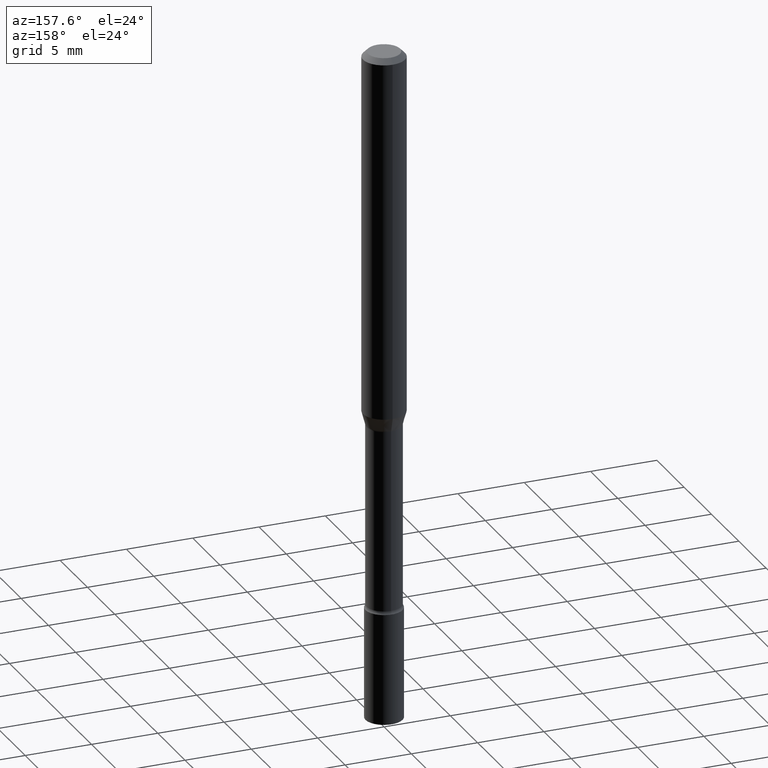
[diagram: clean part render]
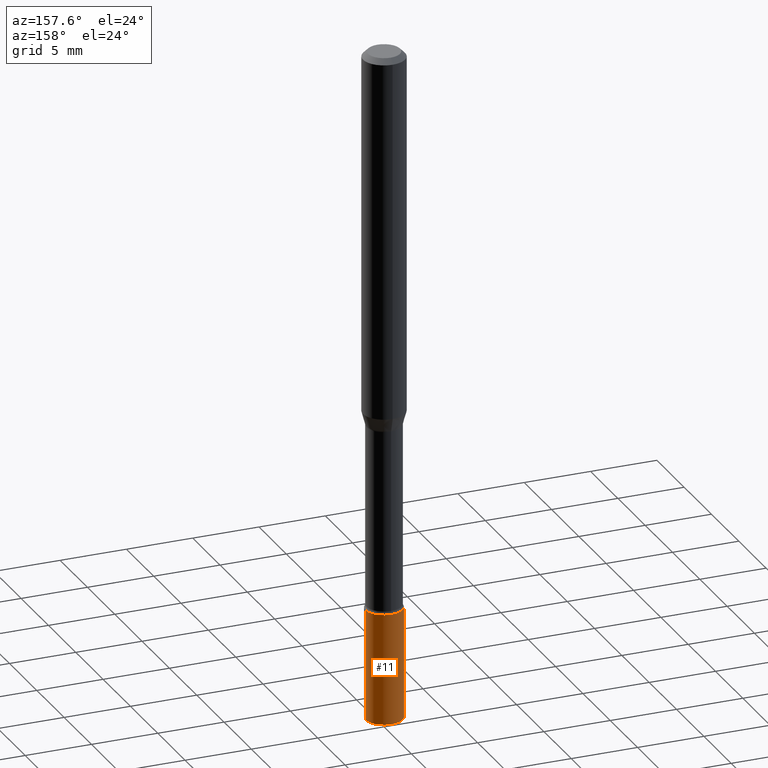
[diagram: same view with one face highlighted and labeled with its STEP entity id]
A machine part, auxiliary view. The second image highlights one B-rep face of the part: STEP entity #11.
In plain terms, the highlighted cylindrical surface (edge-blend (fillet) strip) has radius 1.397 mm, axis along (-0, 0, 1).
Its self-contained STEP definition (entity closure, byte-faithful):
#8 = EDGE_CURVE ( 'NONE', #367, #158, #295, .T. ) ;
#11 = ADVANCED_FACE ( 'NONE', ( #472 ), #403, .T. ) ;
#22 = VECTOR ( 'NONE', #285, 39.37007874015748143 ) ;
#31 = EDGE_CURVE ( 'NONE', #158, #466, #162, .T. ) ;
#33 = CARTESIAN_POINT ( 'NONE',  ( 0.000000000000000000, 0.000000000000000000, 0.000000000000000000 ) ) ;
#52 = CARTESIAN_POINT ( 'NONE',  ( 0.05500000000000000028, -6.214836783140797252E-15, -1.669999999999999929 ) ) ;
#59 = DIRECTION ( 'NONE',  ( 1.000000000000000000, -6.982962677686262766E-15, 0.000000000000000000 ) ) ;
#64 = CARTESIAN_POINT ( 'NONE',  ( 0.05500000000000000028, -3.840629472727446888E-16, 2.681897226687764826E-30 ) ) ;
#76 = DIRECTION ( 'NONE',  ( -2.445468806185136597E-29, 3.491481338843145583E-15, 1.000000000000000000 ) ) ;
#118 = CARTESIAN_POINT ( 'NONE',  ( -0.05500000000000000028, 3.907985046680551042E-16, -2.705414299640198362E-30 ) ) ;
#134 = CARTESIAN_POINT ( 'NONE',  ( 4.890937612370273194E-29, -6.982962677686291165E-15, -2.000000000000000000 ) ) ;
#137 = CARTESIAN_POINT ( 'NONE',  ( -0.05500000000000000028, -6.016069752109117450E-15, -1.669999999999999929 ) ) ;
#141 = CARTESIAN_POINT ( 'NONE',  ( 4.083932906329177803E-29, -5.830773835868053056E-15, -1.669999999999999929 ) ) ;
#158 = VERTEX_POINT ( 'NONE', #385 ) ;
#162 = LINE ( 'NONE', #118, #22 ) ;
#188 = CIRCLE ( 'NONE', #335, 0.05500000000000000028 ) ;
#192 = VECTOR ( 'NONE', #460, 39.37007874015748143 ) ;
#211 = EDGE_CURVE ( 'NONE', #250, #466, #188, .T. ) ;
#215 = AXIS2_PLACEMENT_3D ( 'NONE', #33, #76, #517 ) ;
#223 = ORIENTED_EDGE ( 'NONE', *, *, #8, .T. ) ;
#250 = VERTEX_POINT ( 'NONE', #52 ) ;
#268 = LINE ( 'NONE', #64, #192 ) ;
#282 = ORIENTED_EDGE ( 'NONE', *, *, #211, .F. ) ;
#285 = DIRECTION ( 'NONE',  ( -2.445468806185136877E-29, 3.491481338843145188E-15, 1.000000000000000000 ) ) ;
#292 = EDGE_LOOP ( 'NONE', ( #223, #296, #282, #325 ) ) ;
#295 = CIRCLE ( 'NONE', #402, 0.05500000000000000028 ) ;
#296 = ORIENTED_EDGE ( 'NONE', *, *, #31, .T. ) ;
#325 = ORIENTED_EDGE ( 'NONE', *, *, #505, .F. ) ;
#335 = AXIS2_PLACEMENT_3D ( 'NONE', #141, #457, #59 ) ;
#367 = VERTEX_POINT ( 'NONE', #383 ) ;
#383 = CARTESIAN_POINT ( 'NONE',  ( 0.05500000000000000028, -7.367025624959035361E-15, -2.000000000000000000 ) ) ;
#385 = CARTESIAN_POINT ( 'NONE',  ( -0.05500000000000000028, -6.016069752109117450E-15, -2.000000000000000000 ) ) ;
#402 = AXIS2_PLACEMENT_3D ( 'NONE', #134, #413, #451 ) ;
#403 = CYLINDRICAL_SURFACE ( 'NONE', #215, 0.05500000000000000028 ) ;
#413 = DIRECTION ( 'NONE',  ( -2.445468806185136597E-29, 3.491481338843145583E-15, 1.000000000000000000 ) ) ;
#451 = DIRECTION ( 'NONE',  ( 1.000000000000000000, -6.982962677686262766E-15, 0.000000000000000000 ) ) ;
#457 = DIRECTION ( 'NONE',  ( -2.445468806185136597E-29, 3.491481338843145583E-15, 1.000000000000000000 ) ) ;
#460 = DIRECTION ( 'NONE',  ( -2.445468806185136877E-29, 3.491481338843145188E-15, 1.000000000000000000 ) ) ;
#466 = VERTEX_POINT ( 'NONE', #137 ) ;
#472 = FACE_OUTER_BOUND ( 'NONE', #292, .T. ) ;
#505 = EDGE_CURVE ( 'NONE', #367, #250, #268, .T. ) ;
#517 = DIRECTION ( 'NONE',  ( 1.000000000000000000, -6.982962677686266711E-15, 4.876176775795935793E-29 ) ) ;